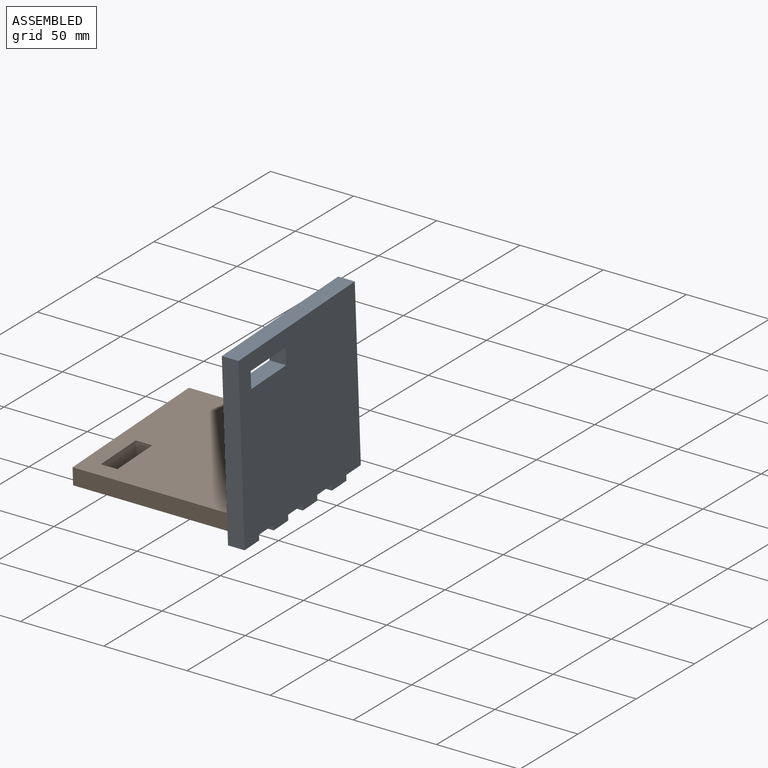
[diagram: assembled view]
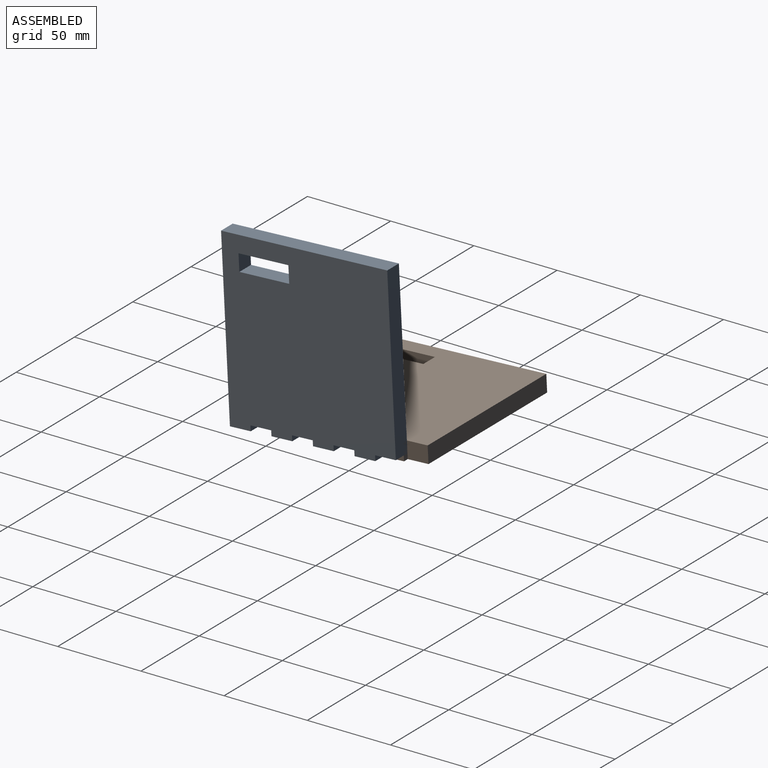
[diagram: assembled view, second angle]
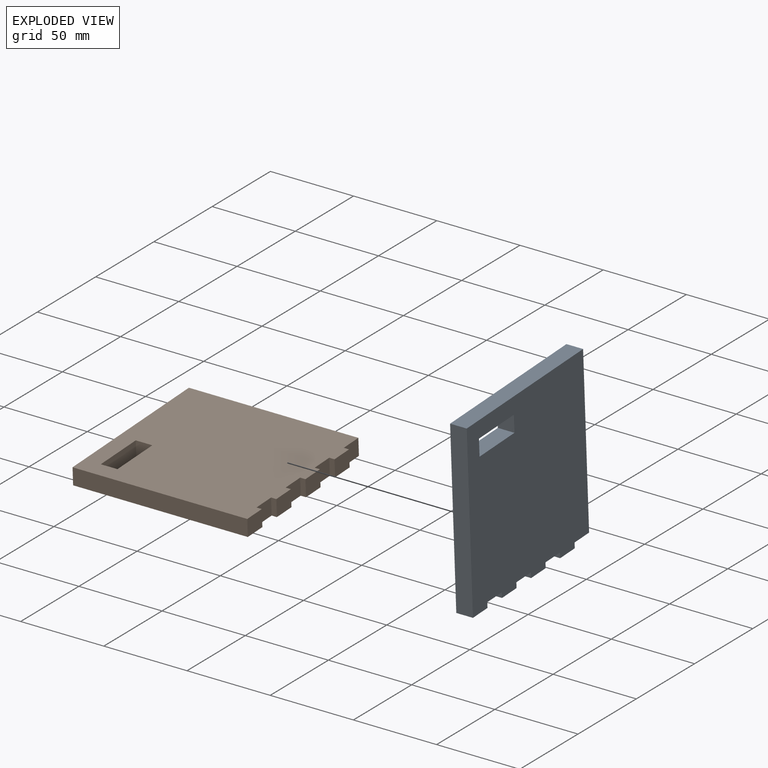
[diagram: exploded view]
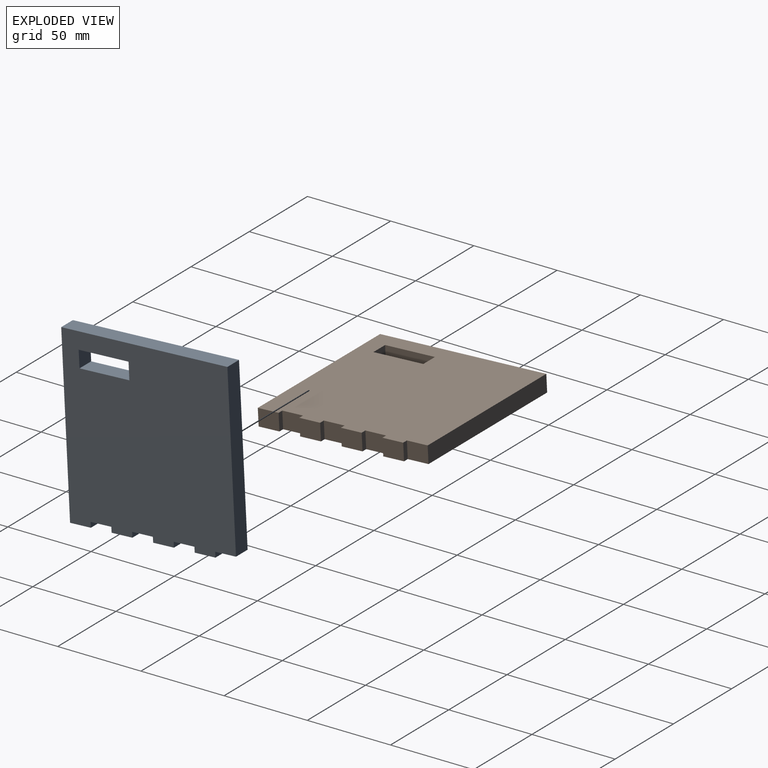
[diagram: exploded view, second angle]
ASSEMBLY  parts=2 mates=3
PART A: 24 faces, bbox 105x100x10 mm
  f0: plane 101.83x10mm, normal (0,1,0), area 1018.3mm2, adj f1,f2,f4,f9
  f1: plane 105x100mm, normal (0,0,1), area 10041.5mm2, adj f0,f3,f4,f5,f6,f7,f8,f9
  f2: plane 105x100mm, normal (0,0,-1), area 10041.5mm2, adj f0,f3,f4,f5,f6,f7,f8,f9
  f3: plane 105x10mm, normal (0,-1,0), area 1050mm2, adj f1,f2,f4,f23
  f4: plane 100x10mm, normal (-1,0,0), area 1000mm2, adj f0,f1,f2,f3
  f5: plane 10x10mm, normal (0,1,0), area 100mm2, adj f1,f2,f6,f8
  f6: plane 30x10mm, normal (-1,0,0), area 300mm2, adj f1,f2,f5,f7
  f7: plane 10x10mm, normal (0,-1,0), area 100mm2, adj f1,f2,f6,f8
  f8: plane 30x10mm, normal (1,0,0), area 300mm2, adj f1,f2,f5,f7
  f9: plane 12.5x10mm, normal (1,0,0), area 125mm2, adj f0,f1,f2,f10
  f10: plane 10x3.17mm, normal (0,1,0), area 31.7mm2, adj f1,f2,f9,f11
  f11: plane 12.5x10mm, normal (1,0,0), area 125mm2, adj f1,f2,f10,f12
  f12: plane 10x3.17mm, normal (0,-1,0), area 31.7mm2, adj f1,f2,f11,f13
  f13: plane 12.5x10mm, normal (1,0,0), area 125mm2, adj f1,f2,f12,f14
  f14: plane 10x3.17mm, normal (0,1,0), area 31.7mm2, adj f1,f2,f13,f15
  f15: plane 12.5x10mm, normal (1,0,0), area 125mm2, adj f1,f2,f14,f16
  f16: plane 10x3.17mm, normal (0,-1,0), area 31.7mm2, adj f1,f2,f15,f17
  f17: plane 12.5x10mm, normal (1,0,0), area 125mm2, adj f1,f2,f16,f18
  f18: plane 10x3.17mm, normal (0,1,0), area 31.7mm2, adj f1,f2,f17,f19
  f19: plane 12.5x10mm, normal (1,0,0), area 125mm2, adj f1,f2,f18,f20
  f20: plane 10x3.17mm, normal (0,-1,0), area 31.7mm2, adj f1,f2,f19,f21
  f21: plane 12.5x10mm, normal (1,0,0), area 125mm2, adj f1,f2,f20,f22
  f22: plane 10x3.17mm, normal (0,1,0), area 31.7mm2, adj f1,f2,f21,f23
  f23: plane 12.5x10mm, normal (1,0,0), area 125mm2, adj f1,f2,f3,f22
PART B: same geometry as A
PLACE A rot(axis=(0.03,1,0.03),90deg) t=(86.45,23.63,-20.6)mm
PLACE B rot(axis=(1,0,0),2.9deg) t=(44.62,38.4,-64.9)mm
MATE planar B.f3 <-> A.f22  axis (0,-1,-0.05) through (37.12,-11.79,-62.45)mm
MATE planar A.f11 <-> B.f2  axis (0,0.05,-1) through (91.45,57.13,-63.95)mm
MATE planar A.f2 <-> B.f21  axis (-1,0,0) through (86.45,23.92,-13.39)mm
